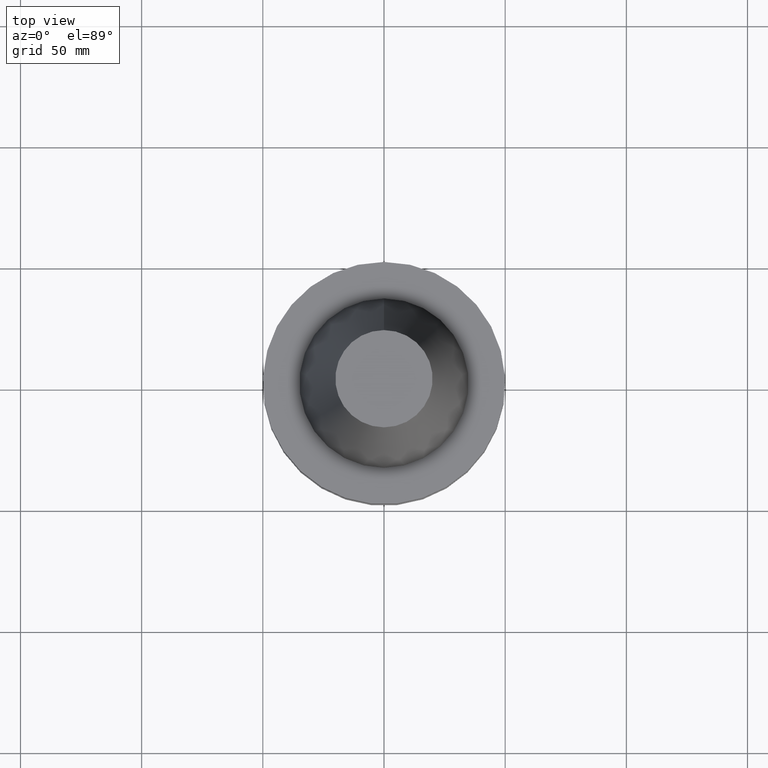
[diagram: clean part render]
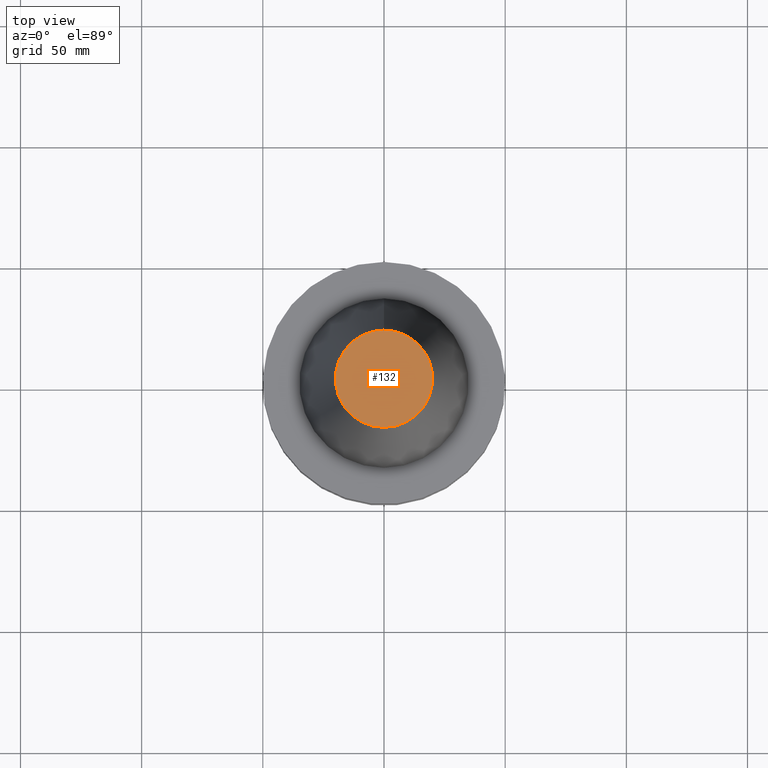
[diagram: same view with one face highlighted and labeled with its STEP entity id]
A machine part, top view. The second image highlights one B-rep face of the part: STEP entity #132.
In plain terms, the highlighted planar face has unit normal (-0, -0, 1).
Its self-contained STEP definition (entity closure, byte-faithful):
#106=EDGE_CURVE('Unnamed[1]',#248,#248,#249,.T.);
#132=ADVANCED_FACE('Unnamed[1]',(#288),#289,.T.);
#248=VERTEX_POINT('',#435);
#249=CIRCLE('',#436,20.0791666651884);
#288=FACE_OUTER_BOUND('',#485,.T.);
#289=PLANE('',#486);
#435=CARTESIAN_POINT('',(-6.23345220766003E-015,20.0791666651884,101.8));
#436=AXIS2_PLACEMENT_3D('',#631,#632,#633);
#485=EDGE_LOOP('',(#676));
#486=AXIS2_PLACEMENT_3D('',#677,#678,#679);
#631=CARTESIAN_POINT('',(-6.23345220766003E-015,1.30378574894418E-014,101.8));
#632=DIRECTION('',(-6.12323399573677E-017,-2.72265846766713E-017,1.0));
#633=DIRECTION('',(-6.49430021956955E-033,1.0,2.72265846766713E-017));
#676=ORIENTED_EDGE('',*,*,#106,.T.);
#677=CARTESIAN_POINT('',(-6.23345220766003E-015,10.0395833325942,101.8));
#678=DIRECTION('',(-6.12323399573677E-017,-1.22464679914735E-016,1.0));
#679=DIRECTION('',(-1.23259516440783E-032,1.0,1.22464679914735E-016));